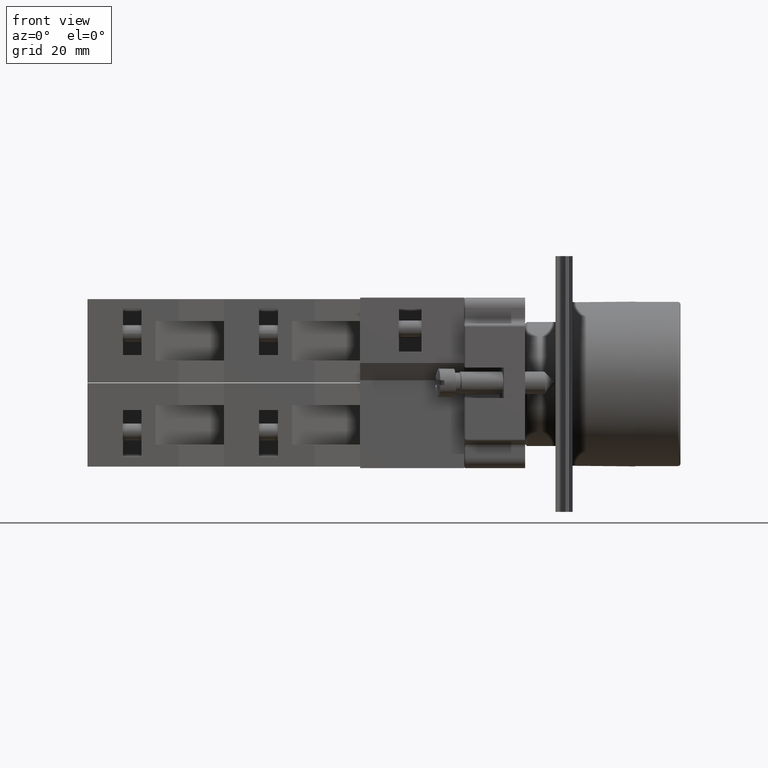
[diagram: clean part render]
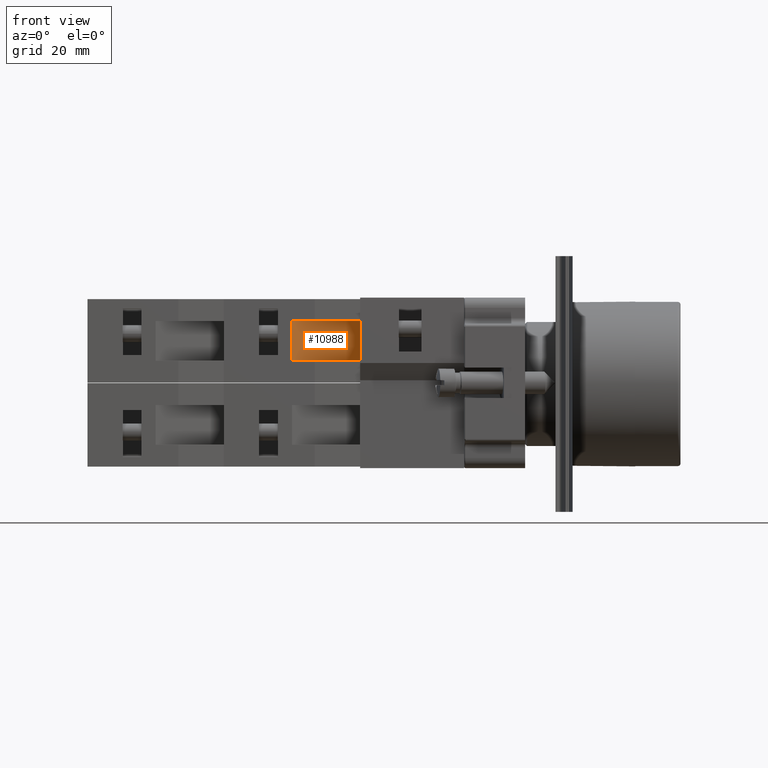
[diagram: same view with one face highlighted and labeled with its STEP entity id]
A machine part, front view. The second image highlights one B-rep face of the part: STEP entity #10988.
In plain terms, the highlighted face is a freeform B-spline surface patch.
Its self-contained STEP definition (entity closure, byte-faithful):
#10933=CARTESIAN_POINT('',(-44.936741828918457,11.797073323279610,10.850000000000000));
#10934=VERTEX_POINT('',#10933);
#10941=CARTESIAN_POINT('',(-35.936741828918450,-0.202926676720384,10.850000000000000));
#10942=VERTEX_POINT('',#10941);
#10943=CARTESIAN_POINT('',(-35.936741828918450,-0.202926676720384,10.850000000000000));
#10944=DIRECTION('',(-0.600000000000000,0.800000000000000,0.0));
#10945=VECTOR('',#10944,15.0);
#10946=LINE('',#10943,#10945);
#10947=EDGE_CURVE('',#10942,#10934,#10946,.T.);
#10958=CARTESIAN_POINT('',(-44.936741828918464,11.797073323279616,3.850000000000000));
#10959=CARTESIAN_POINT('',(-44.936741828918464,11.797073323279616,10.850000000000001));
#10960=CARTESIAN_POINT('',(-35.936741828918443,-0.202926676720384,3.850000000000000));
#10961=CARTESIAN_POINT('',(-35.936741828918450,-0.202926676720384,10.850000000000001));
#10962=B_SPLINE_SURFACE_WITH_KNOTS('',1,1,((#10958,#10960),(#10959,#10961)),.UNSPECIFIED.,.F.,.F.,.U.,(2,2),(2,2),(0.0,7.000000000000002),(0.0,15.000000000000012),.UNSPECIFIED.);
#10963=CARTESIAN_POINT('',(-44.936741828918457,11.797073323279610,3.850000000000001));
#10964=VERTEX_POINT('',#10963);
#10965=CARTESIAN_POINT('',(-35.936741828918450,-0.202926676720384,3.850000000000001));
#10966=VERTEX_POINT('',#10965);
#10967=CARTESIAN_POINT('',(-44.936741828918457,11.797073323279610,3.850000000000001));
#10968=DIRECTION('',(0.600000000000000,-0.800000000000000,0.0));
#10969=VECTOR('',#10968,15.0);
#10970=LINE('',#10967,#10969);
#10971=EDGE_CURVE('',#10964,#10966,#10970,.T.);
#10972=ORIENTED_EDGE('',*,*,#10971,.T.);
#10973=CARTESIAN_POINT('',(-35.936741828918450,-0.202926676720384,10.850000000000000));
#10974=DIRECTION('',(0.0,0.0,-1.0));
#10975=VECTOR('',#10974,6.999999999999999);
#10976=LINE('',#10973,#10975);
#10977=EDGE_CURVE('',#10942,#10966,#10976,.T.);
#10978=ORIENTED_EDGE('',*,*,#10977,.F.);
#10979=ORIENTED_EDGE('',*,*,#10947,.T.);
#10980=CARTESIAN_POINT('',(-44.936741828918457,11.797073323279610,3.850000000000001));
#10981=DIRECTION('',(0.0,0.0,1.0));
#10982=VECTOR('',#10981,6.999999999999999);
#10983=LINE('',#10980,#10982);
#10984=EDGE_CURVE('',#10964,#10934,#10983,.T.);
#10985=ORIENTED_EDGE('',*,*,#10984,.F.);
#10986=EDGE_LOOP('',(#10972,#10978,#10979,#10985));
#10987=FACE_OUTER_BOUND('',#10986,.T.);
#10988=ADVANCED_FACE('',(#10987),#10962,.F.);